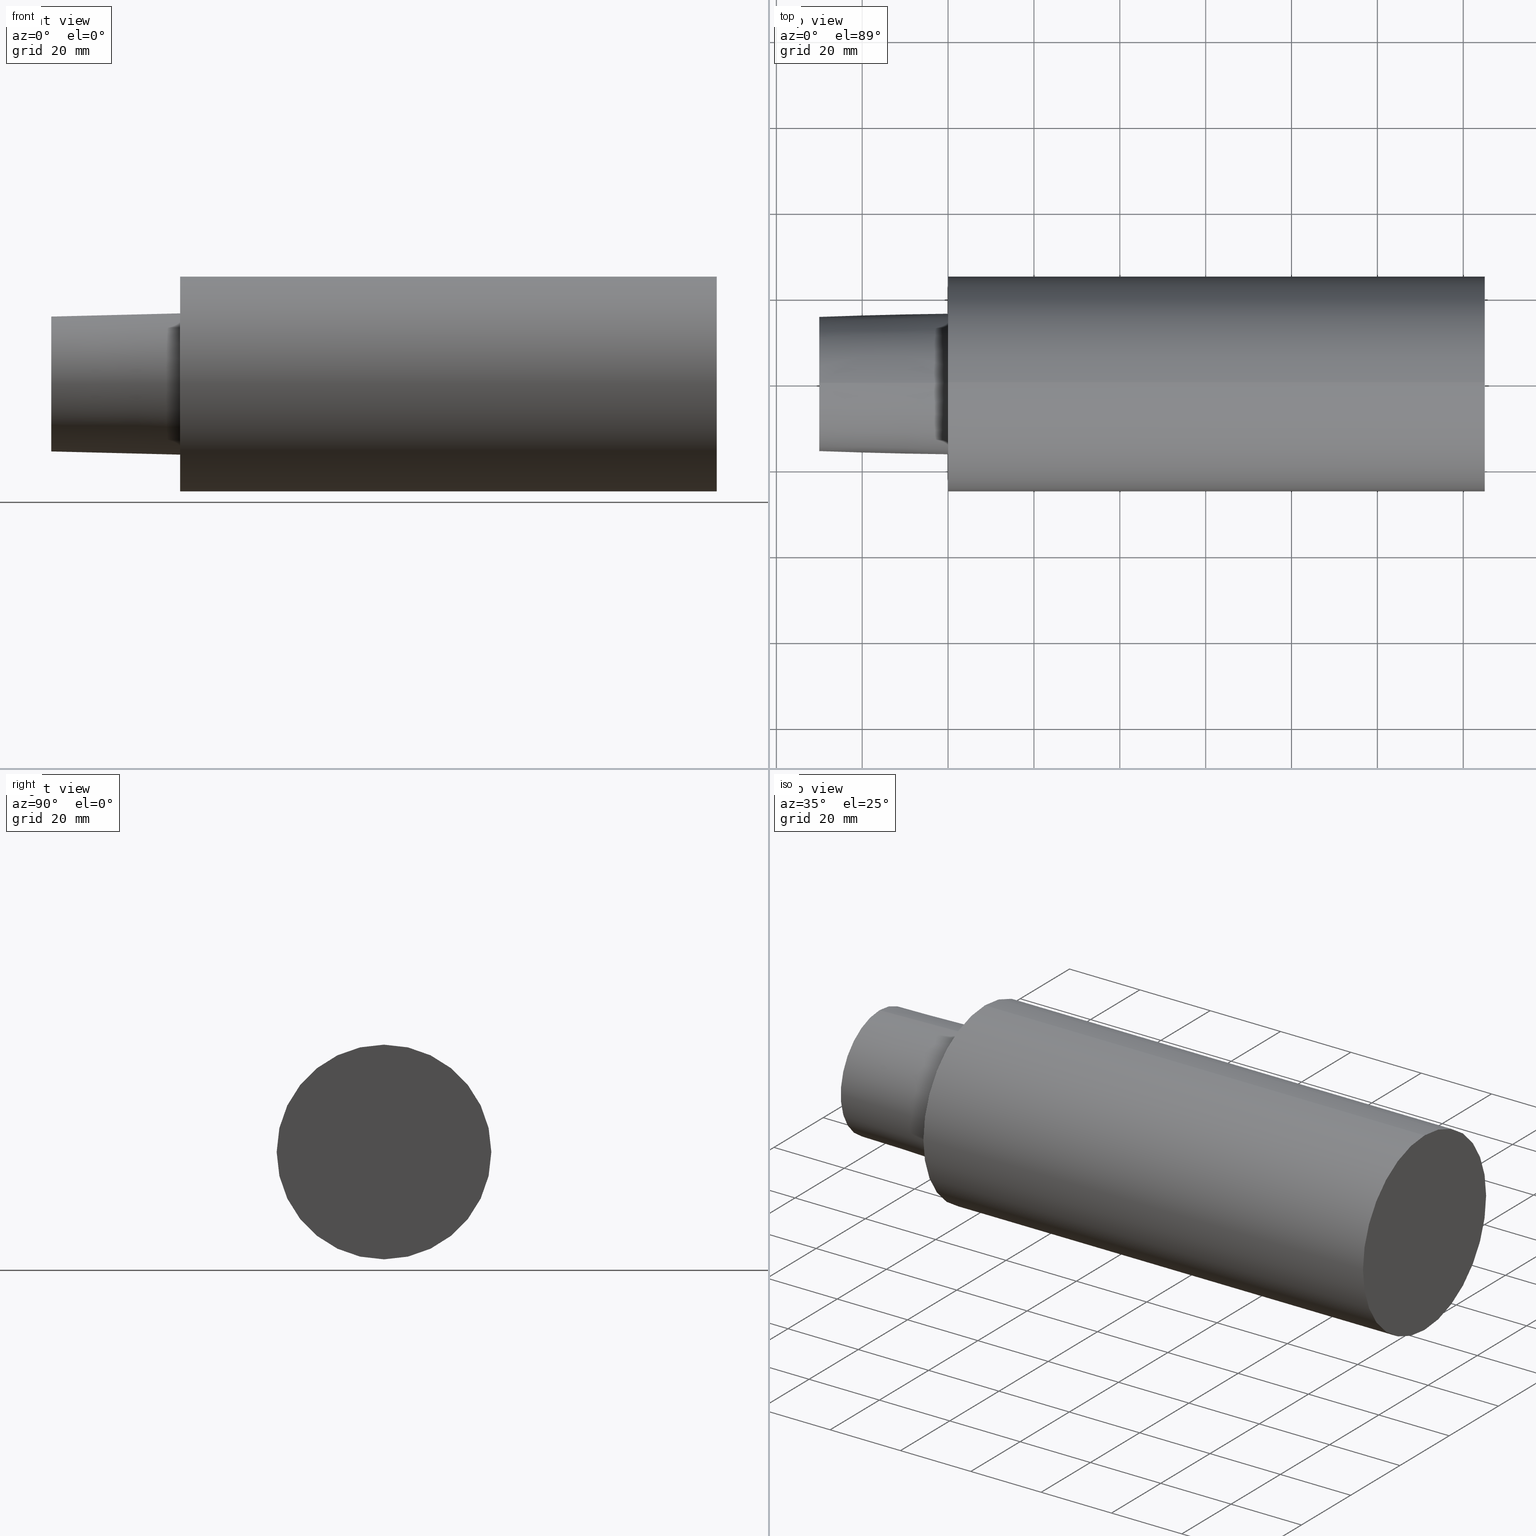
[diagram: canonical four-view strip — front | top / right | iso, engineering-drawing reading convention]
A machine part, canonical four-view strip (front | top / right | iso — engineering-drawing reading convention). The complete STEP part file that produces these views, byte-faithful:
ISO-10303-21;
HEADER;
FILE_DESCRIPTION (( 'STEP AP203' ),
    '1' );
FILE_NAME ('C5-F50-125.stp',
    '2022-03-11T15:28:16',
    ( '' ),
    ( '' ),
    'SwSTEP 2.0',
    'SolidWorks 2021',
    '' );
FILE_SCHEMA (( 'CONFIG_CONTROL_DESIGN' ));
ENDSEC;

DATA;
#1 = PERSON_AND_ORGANIZATION_ROLE ( 'design_owner' ) ;
#2 = EDGE_CURVE ( 'NONE', #92, #183, #154, .T. ) ;
#3 = APPROVAL_PERSON_ORGANIZATION ( #162, #6, #219 ) ;
#4 = PRODUCT_RELATED_PRODUCT_CATEGORY ( 'detail', '', ( #181 ) ) ;
#5 = DIRECTION ( 'NONE',  ( -1.000000000000000000, 0.000000000000000000, 0.000000000000000000 ) ) ;
#6 = APPROVAL ( #9, 'UNSPECIFIED' ) ;
#7 = CARTESIAN_POINT ( 'NONE',  ( -29.99999996940000102, 0.000000000000000000, -15.70494056296217700 ) ) ;
#8 = CARTESIAN_POINT ( 'NONE',  ( 124.9999998724999841, 3.061616994745535943E-15, -24.99999997449999967 ) ) ;
#9 = APPROVAL_STATUS ( 'not_yet_approved' ) ;
#10 = EDGE_LOOP ( 'NONE', ( #187, #144 ) ) ;
#11 = CARTESIAN_POINT ( 'NONE',  ( 0.000000000000000000, 3.061616994745535943E-15, -24.99999997449999967 ) ) ;
#12 = PERSON ( 'UNSPECIFIED', 'UNSPECIFIED', 'UNSPECIFIED', ('UNSPECIFIED'), ('UNSPECIFIED'), ('UNSPECIFIED') ) ;
#13 = DATE_AND_TIME ( #200, #176 ) ;
#14 =( NAMED_UNIT ( * ) PLANE_ANGLE_UNIT ( ) SI_UNIT ( $, .RADIAN. ) );
#15 = VERTEX_POINT ( 'NONE', #41 ) ;
#16 = DIRECTION ( 'NONE',  ( 0.000000000000000000, 0.000000000000000000, 1.000000000000000000 ) ) ;
#17 = DIRECTION ( 'NONE',  ( 0.000000000000000000, 0.000000000000000000, 1.000000000000000000 ) ) ;
#18 = CC_DESIGN_PERSON_AND_ORGANIZATION_ASSIGNMENT ( #240, #1, ( #181 ) ) ;
#19 = CARTESIAN_POINT ( 'NONE',  ( -29.99999996940000102, 3.061616994745535943E-15, -24.99999997449999967 ) ) ;
#20 = CC_DESIGN_APPROVAL ( #6, ( #73 ) ) ;
#21 = EDGE_CURVE ( 'NONE', #183, #233, #104, .T. ) ;
#22 = CARTESIAN_POINT ( 'NONE',  ( 0.000000000000000000, 0.000000000000000000, 0.000000000000000000 ) ) ;
#23 = APPROVAL_STATUS ( 'not_yet_approved' ) ;
#24 = ADVANCED_BREP_SHAPE_REPRESENTATION ( 'C5-F50-125', ( #228, #79 ), #44 ) ;
#25 = AXIS2_PLACEMENT_3D ( 'NONE', #22, #99, #62 ) ;
#26 = APPROVAL_ROLE ( '' ) ;
#27 = COORDINATED_UNIVERSAL_TIME_OFFSET ( 6, 0, .BEHIND. ) ;
#28 = APPROVAL_PERSON_ORGANIZATION ( #195, #93, #29 ) ;
#29 = APPROVAL_ROLE ( '' ) ;
#30 = PRODUCT_DEFINITION_SHAPE ( 'NONE', 'NONE',  #134 ) ;
#31 = PERSON_AND_ORGANIZATION_ROLE ( 'design_supplier' ) ;
#32 = ORIENTED_EDGE ( 'NONE', *, *, #40, .F. ) ;
#33 = FACE_OUTER_BOUND ( 'NONE', #39, .T. ) ;
#34 = UNCERTAINTY_MEASURE_WITH_UNIT (LENGTH_MEASURE( 1.000000000000000082E-05 ), #53, 'distance_accuracy_value', 'NONE');
#35 = DIRECTION ( 'NONE',  ( 1.000000000000000000, 0.000000000000000000, 0.000000000000000000 ) ) ;
#36 = CARTESIAN_POINT ( 'NONE',  ( 0.000000000000000000, 2.015157114129614578E-15, 16.45500658257258664 ) ) ;
#37 = ORIENTED_EDGE ( 'NONE', *, *, #2, .T. ) ;
#38 = CARTESIAN_POINT ( 'NONE',  ( 0.000000000000000000, 0.000000000000000000, 24.99999997449999967 ) ) ;
#39 = EDGE_LOOP ( 'NONE', ( #81, #153 ) ) ;
#40 = EDGE_CURVE ( 'NONE', #203, #15, #215, .T. ) ;
#41 = CARTESIAN_POINT ( 'NONE',  ( 0.000000000000000000, 0.000000000000000000, -16.45500658257258664 ) ) ;
#42 = PLANE ( 'NONE',  #61 ) ;
#43 = LOCAL_TIME ( 9, 28, 16.00000000000000000, #71 ) ;
#44 =( GEOMETRIC_REPRESENTATION_CONTEXT ( 3 ) GLOBAL_UNCERTAINTY_ASSIGNED_CONTEXT ( ( #34 ) ) GLOBAL_UNIT_ASSIGNED_CONTEXT ( ( #53, #14, #164 ) ) REPRESENTATION_CONTEXT ( 'NONE', 'WORKASPACE' ) );
#45 = DIRECTION ( 'NONE',  ( 0.000000000000000000, 0.000000000000000000, 1.000000000000000000 ) ) ;
#46 = CC_DESIGN_PERSON_AND_ORGANIZATION_ASSIGNMENT ( #90, #146, ( #134 ) ) ;
#47 = APPROVAL_DATE_TIME ( #48, #6 ) ;
#48 = DATE_AND_TIME ( #49, #43 ) ;
#49 = CALENDAR_DATE ( 2022, 11, 3 ) ;
#50 = DIRECTION ( 'NONE',  ( 0.000000000000000000, 0.000000000000000000, 1.000000000000000000 ) ) ;
#51 = CIRCLE ( 'NONE', #211, 24.99999997449999967 ) ;
#52 = COORDINATED_UNIVERSAL_TIME_OFFSET ( 6, 0, .BEHIND. ) ;
#53 =( LENGTH_UNIT ( ) NAMED_UNIT ( * ) SI_UNIT ( .MILLI., .METRE. ) );
#54 = CYLINDRICAL_SURFACE ( 'NONE', #241, 24.99999997449999967 ) ;
#55 = CC_DESIGN_DATE_AND_TIME_ASSIGNMENT ( #220, #244, ( #134 ) ) ;
#56 = CIRCLE ( 'NONE', #198, 15.70494056296217700 ) ;
#57 = ORIENTED_EDGE ( 'NONE', *, *, #239, .T. ) ;
#58 = CARTESIAN_POINT ( 'NONE',  ( 0.000000000000000000, 0.000000000000000000, 0.000000000000000000 ) ) ;
#59 = MECHANICAL_CONTEXT ( 'NONE', #201, 'mechanical' ) ;
#60 = DIRECTION ( 'NONE',  ( -1.000000000000000000, 0.000000000000000000, 0.000000000000000000 ) ) ;
#61 = AXIS2_PLACEMENT_3D ( 'NONE', #118, #136, #85 ) ;
#62 = DIRECTION ( 'NONE',  ( 0.000000000000000000, 0.000000000000000000, 1.000000000000000000 ) ) ;
#63 = ADVANCED_FACE ( 'NONE', ( #135, #216 ), #42, .F. ) ;
#64 = CC_DESIGN_APPROVAL ( #93, ( #134 ) ) ;
#65 = CC_DESIGN_PERSON_AND_ORGANIZATION_ASSIGNMENT ( #123, #139, ( #254 ) ) ;
#66 = AXIS2_PLACEMENT_3D ( 'NONE', #107, #189, #232 ) ;
#67 = COORDINATED_UNIVERSAL_TIME_OFFSET ( 6, 0, .BEHIND. ) ;
#68 = DATE_AND_TIME ( #205, #210 ) ;
#69 = EDGE_LOOP ( 'NONE', ( #147, #117, #76, #250 ) ) ;
#70 = DIRECTION ( 'NONE',  ( 0.000000000000000000, 1.000000000000000000, 0.000000000000000000 ) ) ;
#71 = COORDINATED_UNIVERSAL_TIME_OFFSET ( 6, 0, .BEHIND. ) ;
#72 = ADVANCED_FACE ( 'NONE', ( #157 ), #119, .F. ) ;
#73 = PRODUCT_DEFINITION_FORMATION_WITH_SPECIFIED_SOURCE ( 'ANY', '', #181, .NOT_KNOWN. ) ;
#74 = VERTEX_POINT ( 'NONE', #7 ) ;
#75 = CARTESIAN_POINT ( 'NONE',  ( 0.000000000000000000, 0.000000000000000000, 0.000000000000000000 ) ) ;
#76 = ORIENTED_EDGE ( 'NONE', *, *, #40, .T. ) ;
#77 = EDGE_LOOP ( 'NONE', ( #194, #32 ) ) ;
#78 = CARTESIAN_POINT ( 'NONE',  ( 124.9999998724999841, 0.000000000000000000, 24.99999997449999967 ) ) ;
#79 = AXIS2_PLACEMENT_3D ( 'NONE', #75, #224, #208 ) ;
#80 = LINE ( 'NONE', #96, #137 ) ;
#81 = ORIENTED_EDGE ( 'NONE', *, *, #239, .F. ) ;
#82 = EDGE_CURVE ( 'NONE', #15, #203, #98, .T. ) ;
#83 = VERTEX_POINT ( 'NONE', #242 ) ;
#84 = ADVANCED_FACE ( 'NONE', ( #178 ), #245, .T. ) ;
#85 = DIRECTION ( 'NONE',  ( 0.000000000000000000, 1.000000000000000000, 0.000000000000000000 ) ) ;
#86 = VECTOR ( 'NONE', #188, 1000.000000000000000 ) ;
#87 = APPROVAL_STATUS ( 'not_yet_approved' ) ;
#88 = AXIS2_PLACEMENT_3D ( 'NONE', #186, #35, #249 ) ;
#89 = CALENDAR_DATE ( 2022, 11, 3 ) ;
#90 = PERSON_AND_ORGANIZATION ( #12, #223 ) ;
#91 = CIRCLE ( 'NONE', #247, 24.99999997449999967 ) ;
#92 = VERTEX_POINT ( 'NONE', #8 ) ;
#93 = APPROVAL ( #23, 'UNSPECIFIED' ) ;
#94 = CARTESIAN_POINT ( 'NONE',  ( -29.99999996940000102, 0.000000000000000000, 24.99999997449999967 ) ) ;
#95 = ORIENTED_EDGE ( 'NONE', *, *, #166, .T. ) ;
#96 = CARTESIAN_POINT ( 'NONE',  ( 0.000000000000000000, 2.015157114129614578E-15, 16.45500658257258664 ) ) ;
#97 = APPROVAL_PERSON_ORGANIZATION ( #163, #227, #26 ) ;
#98 = CIRCLE ( 'NONE', #171, 16.45500658257258664 ) ;
#99 = DIRECTION ( 'NONE',  ( -1.000000000000000000, 0.000000000000000000, 0.000000000000000000 ) ) ;
#100 = CONICAL_SURFACE ( 'NONE', #88, 16.45500658257258664, 0.02499699292341668252 ) ;
#101 = AXIS2_PLACEMENT_3D ( 'NONE', #234, #60, #252 ) ;
#102 = DATE_TIME_ROLE ( 'classification_date' ) ;
#103 = CC_DESIGN_SECURITY_CLASSIFICATION ( #254, ( #73 ) ) ;
#104 = CIRCLE ( 'NONE', #101, 24.99999997449999967 ) ;
#105 = PERSON_AND_ORGANIZATION ( #12, #223 ) ;
#106 = EDGE_LOOP ( 'NONE', ( #207, #141, #173, #236 ) ) ;
#107 = CARTESIAN_POINT ( 'NONE',  ( 124.9999998724999841, 0.000000000000000000, 0.000000000000000000 ) ) ;
#108 = EDGE_CURVE ( 'NONE', #92, #213, #91, .T. ) ;
#109 = DIRECTION ( 'NONE',  ( -1.000000000000000000, 0.000000000000000000, 0.000000000000000000 ) ) ;
#110 = CC_DESIGN_DATE_AND_TIME_ASSIGNMENT ( #68, #102, ( #254 ) ) ;
#111 = CARTESIAN_POINT ( 'NONE',  ( -29.99999996940000102, 0.000000000000000000, 0.000000000000000000 ) ) ;
#112 = ORIENTED_EDGE ( 'NONE', *, *, #237, .F. ) ;
#113 = CARTESIAN_POINT ( 'NONE',  ( 0.000000000000000000, 0.000000000000000000, 0.000000000000000000 ) ) ;
#114 = ADVANCED_FACE ( 'NONE', ( #197 ), #54, .T. ) ;
#115 = EDGE_LOOP ( 'NONE', ( #57, #37, #174, #112 ) ) ;
#116 = LOCAL_TIME ( 9, 28, 16.00000000000000000, #27 ) ;
#117 = ORIENTED_EDGE ( 'NONE', *, *, #196, .T. ) ;
#118 = CARTESIAN_POINT ( 'NONE',  ( 0.000000000000000000, 24.99999997449999967, 0.000000000000000000 ) ) ;
#119 = PLANE ( 'NONE',  #126 ) ;
#120 = CARTESIAN_POINT ( 'NONE',  ( 0.000000000000000000, 0.000000000000000000, 0.000000000000000000 ) ) ;
#121 = COORDINATED_UNIVERSAL_TIME_OFFSET ( 6, 0, .BEHIND. ) ;
#122 = DIRECTION ( 'NONE',  ( 1.000000000000000000, 0.000000000000000000, 0.000000000000000000 ) ) ;
#123 = PERSON_AND_ORGANIZATION ( #12, #223 ) ;
#124 = DIRECTION ( 'NONE',  ( 0.000000000000000000, 0.000000000000000000, 1.000000000000000000 ) ) ;
#125 = CC_DESIGN_APPROVAL ( #227, ( #254 ) ) ;
#126 = AXIS2_PLACEMENT_3D ( 'NONE', #243, #122, #70 ) ;
#127 = PERSON_AND_ORGANIZATION_ROLE ( 'creator' ) ;
#128 = DIRECTION ( 'NONE',  ( -1.000000000000000000, 0.000000000000000000, 0.000000000000000000 ) ) ;
#129 = EDGE_LOOP ( 'NONE', ( #133, #149 ) ) ;
#130 = DIRECTION ( 'NONE',  ( 0.000000000000000000, 0.000000000000000000, -1.000000000000000000 ) ) ;
#131 = CARTESIAN_POINT ( 'NONE',  ( -29.99999996940000102, 0.000000000000000000, 0.000000000000000000 ) ) ;
#132 = AXIS2_PLACEMENT_3D ( 'NONE', #142, #5, #50 ) ;
#133 = ORIENTED_EDGE ( 'NONE', *, *, #140, .T. ) ;
#134 = PRODUCT_DEFINITION ( 'UNKNOWN', '', #73, #190 ) ;
#135 = FACE_BOUND ( 'NONE', #77, .T. ) ;
#136 = DIRECTION ( 'NONE',  ( 1.000000000000000000, 0.000000000000000000, 0.000000000000000000 ) ) ;
#137 = VECTOR ( 'NONE', #226, 999.9999999999998863 ) ;
#138 = EDGE_CURVE ( 'NONE', #83, #74, #165, .T. ) ;
#139 = PERSON_AND_ORGANIZATION_ROLE ( 'classification_officer' ) ;
#140 = EDGE_CURVE ( 'NONE', #74, #83, #56, .T. ) ;
#141 = ORIENTED_EDGE ( 'NONE', *, *, #108, .T. ) ;
#142 = CARTESIAN_POINT ( 'NONE',  ( -29.99999996940000102, 0.000000000000000000, 0.000000000000000000 ) ) ;
#143 = PERSON_AND_ORGANIZATION ( #12, #223 ) ;
#144 = ORIENTED_EDGE ( 'NONE', *, *, #21, .T. ) ;
#145 = AXIS2_PLACEMENT_3D ( 'NONE', #111, #128, #255 ) ;
#146 = PERSON_AND_ORGANIZATION_ROLE ( 'creator' ) ;
#147 = ORIENTED_EDGE ( 'NONE', *, *, #138, .F. ) ;
#148 = DIRECTION ( 'NONE',  ( 0.9996875914402667540, 0.000000000000000000, -0.02499438977767799372 ) ) ;
#149 = ORIENTED_EDGE ( 'NONE', *, *, #138, .T. ) ;
#150 = ORIENTED_EDGE ( 'NONE', *, *, #140, .F. ) ;
#151 = CARTESIAN_POINT ( 'NONE',  ( 124.9999998724999841, 0.000000000000000000, 0.000000000000000000 ) ) ;
#152 = CARTESIAN_POINT ( 'NONE',  ( 0.000000000000000000, 0.000000000000000000, -16.45500658257258664 ) ) ;
#153 = ORIENTED_EDGE ( 'NONE', *, *, #108, .F. ) ;
#154 = LINE ( 'NONE', #19, #231 ) ;
#155 = ORIENTED_EDGE ( 'NONE', *, *, #82, .T. ) ;
#156 = CIRCLE ( 'NONE', #217, 24.99999997449999967 ) ;
#157 = FACE_OUTER_BOUND ( 'NONE', #129, .T. ) ;
#158 = SHAPE_DEFINITION_REPRESENTATION ( #30, #24 ) ;
#159 = LOCAL_TIME ( 9, 28, 16.00000000000000000, #52 ) ;
#160 = CONICAL_SURFACE ( 'NONE', #193, 16.45500658257258664, 0.02499699292341668252 ) ;
#161 = DIRECTION ( 'NONE',  ( -1.000000000000000000, 0.000000000000000000, 0.000000000000000000 ) ) ;
#162 = PERSON_AND_ORGANIZATION ( #12, #223 ) ;
#163 = PERSON_AND_ORGANIZATION ( #12, #223 ) ;
#164 =( NAMED_UNIT ( * ) SI_UNIT ( $, .STERADIAN. ) SOLID_ANGLE_UNIT ( ) );
#165 = CIRCLE ( 'NONE', #145, 15.70494056296217700 ) ;
#166 = EDGE_CURVE ( 'NONE', #74, #15, #229, .T. ) ;
#167 = FACE_OUTER_BOUND ( 'NONE', #191, .T. ) ;
#168 = DIRECTION ( 'NONE',  ( 1.000000000000000000, 0.000000000000000000, 0.000000000000000000 ) ) ;
#169 = ADVANCED_FACE ( 'NONE', ( #167 ), #100, .T. ) ;
#170 = APPLICATION_PROTOCOL_DEFINITION ( 'international standard', 'config_control_design', 1994, #201 ) ;
#171 = AXIS2_PLACEMENT_3D ( 'NONE', #120, #161, #124 ) ;
#172 = EDGE_CURVE ( 'NONE', #233, #183, #156, .T. ) ;
#173 = ORIENTED_EDGE ( 'NONE', *, *, #237, .T. ) ;
#174 = ORIENTED_EDGE ( 'NONE', *, *, #172, .F. ) ;
#175 = APPLICATION_PROTOCOL_DEFINITION ( 'international standard', 'config_control_design', 1994, #230 ) ;
#176 = LOCAL_TIME ( 9, 28, 16.00000000000000000, #67 ) ;
#177 = ADVANCED_FACE ( 'NONE', ( #33 ), #212, .F. ) ;
#178 = FACE_OUTER_BOUND ( 'NONE', #106, .T. ) ;
#179 = APPROVAL_DATE_TIME ( #202, #227 ) ;
#180 = APPROVAL_DATE_TIME ( #13, #93 ) ;
#181 = PRODUCT ( 'C5-F50-125', 'C5-F50-125', '', ( #59 ) ) ;
#182 = CALENDAR_DATE ( 2022, 11, 3 ) ;
#183 = VERTEX_POINT ( 'NONE', #11 ) ;
#184 = DIRECTION ( 'NONE',  ( 0.000000000000000000, 0.000000000000000000, 1.000000000000000000 ) ) ;
#185 = ORIENTED_EDGE ( 'NONE', *, *, #196, .F. ) ;
#186 = CARTESIAN_POINT ( 'NONE',  ( 0.000000000000000000, 0.000000000000000000, 0.000000000000000000 ) ) ;
#187 = ORIENTED_EDGE ( 'NONE', *, *, #172, .T. ) ;
#188 = DIRECTION ( 'NONE',  ( -1.000000000000000000, 0.000000000000000000, 0.000000000000000000 ) ) ;
#189 = DIRECTION ( 'NONE',  ( -1.000000000000000000, 0.000000000000000000, 0.000000000000000000 ) ) ;
#190 = DESIGN_CONTEXT ( 'detailed design', #230, 'design' ) ;
#191 = EDGE_LOOP ( 'NONE', ( #185, #150, #95, #155 ) ) ;
#192 = CARTESIAN_POINT ( 'NONE',  ( -29.99999996940000102, 0.000000000000000000, 0.000000000000000000 ) ) ;
#193 = AXIS2_PLACEMENT_3D ( 'NONE', #58, #168, #130 ) ;
#194 = ORIENTED_EDGE ( 'NONE', *, *, #82, .F. ) ;
#195 = PERSON_AND_ORGANIZATION ( #12, #223 ) ;
#196 = EDGE_CURVE ( 'NONE', #83, #203, #80, .T. ) ;
#197 = FACE_OUTER_BOUND ( 'NONE', #115, .T. ) ;
#198 = AXIS2_PLACEMENT_3D ( 'NONE', #192, #209, #17 ) ;
#199 = CC_DESIGN_PERSON_AND_ORGANIZATION_ASSIGNMENT ( #143, #31, ( #73 ) ) ;
#200 = CALENDAR_DATE ( 2022, 11, 3 ) ;
#201 = APPLICATION_CONTEXT ( 'configuration controlled 3d designs of mechanical parts and assemblies' ) ;
#202 = DATE_AND_TIME ( #182, #159 ) ;
#203 = VERTEX_POINT ( 'NONE', #36 ) ;
#204 = CLOSED_SHELL ( 'NONE', ( #72, #169, #63, #84, #177, #114, #225 ) ) ;
#205 = CALENDAR_DATE ( 2022, 11, 3 ) ;
#206 = DIRECTION ( 'NONE',  ( -1.000000000000000000, 0.000000000000000000, 0.000000000000000000 ) ) ;
#207 = ORIENTED_EDGE ( 'NONE', *, *, #2, .F. ) ;
#208 = DIRECTION ( 'NONE',  ( 1.000000000000000000, 0.000000000000000000, 0.000000000000000000 ) ) ;
#209 = DIRECTION ( 'NONE',  ( -1.000000000000000000, 0.000000000000000000, 0.000000000000000000 ) ) ;
#210 = LOCAL_TIME ( 9, 28, 16.00000000000000000, #121 ) ;
#211 = AXIS2_PLACEMENT_3D ( 'NONE', #151, #206, #16 ) ;
#212 = PLANE ( 'NONE',  #66 ) ;
#213 = VERTEX_POINT ( 'NONE', #78 ) ;
#214 = FACE_OUTER_BOUND ( 'NONE', #69, .T. ) ;
#215 = CIRCLE ( 'NONE', #25, 16.45500658257258664 ) ;
#216 = FACE_OUTER_BOUND ( 'NONE', #10, .T. ) ;
#217 = AXIS2_PLACEMENT_3D ( 'NONE', #113, #222, #184 ) ;
#218 = DIRECTION ( 'NONE',  ( -1.000000000000000000, 0.000000000000000000, 0.000000000000000000 ) ) ;
#219 = APPROVAL_ROLE ( '' ) ;
#220 = DATE_AND_TIME ( #89, #116 ) ;
#221 = SECURITY_CLASSIFICATION_LEVEL ( 'unclassified' ) ;
#222 = DIRECTION ( 'NONE',  ( -1.000000000000000000, 0.000000000000000000, 0.000000000000000000 ) ) ;
#223 = ORGANIZATION ( 'UNSPECIFIED', 'UNSPECIFIED', '' ) ;
#224 = DIRECTION ( 'NONE',  ( 0.000000000000000000, 0.000000000000000000, 1.000000000000000000 ) ) ;
#225 = ADVANCED_FACE ( 'NONE', ( #214 ), #160, .T. ) ;
#226 = DIRECTION ( 'NONE',  ( 0.9996875914402667540, 3.060929943787468651E-18, 0.02499438977767799372 ) ) ;
#227 = APPROVAL ( #87, 'UNSPECIFIED' ) ;
#228 = MANIFOLD_SOLID_BREP ( 'Scale1', #204 ) ;
#229 = LINE ( 'NONE', #152, #235 ) ;
#230 = APPLICATION_CONTEXT ( 'configuration controlled 3d designs of mechanical parts and assemblies' ) ;
#231 = VECTOR ( 'NONE', #238, 1000.000000000000000 ) ;
#232 = DIRECTION ( 'NONE',  ( 0.000000000000000000, 0.000000000000000000, 1.000000000000000000 ) ) ;
#233 = VERTEX_POINT ( 'NONE', #38 ) ;
#234 = CARTESIAN_POINT ( 'NONE',  ( 0.000000000000000000, 0.000000000000000000, 0.000000000000000000 ) ) ;
#235 = VECTOR ( 'NONE', #148, 999.9999999999998863 ) ;
#236 = ORIENTED_EDGE ( 'NONE', *, *, #21, .F. ) ;
#237 = EDGE_CURVE ( 'NONE', #213, #233, #251, .T. ) ;
#238 = DIRECTION ( 'NONE',  ( -1.000000000000000000, 0.000000000000000000, 0.000000000000000000 ) ) ;
#239 = EDGE_CURVE ( 'NONE', #213, #92, #51, .T. ) ;
#240 = PERSON_AND_ORGANIZATION ( #12, #223 ) ;
#241 = AXIS2_PLACEMENT_3D ( 'NONE', #131, #109, #253 ) ;
#242 = CARTESIAN_POINT ( 'NONE',  ( -29.99999996940000102, 1.969228816626358703E-15, 15.70494056296217700 ) ) ;
#243 = CARTESIAN_POINT ( 'NONE',  ( -29.99999996940000102, 15.70494056296217700, 0.000000000000000000 ) ) ;
#244 = DATE_TIME_ROLE ( 'creation_date' ) ;
#245 = CYLINDRICAL_SURFACE ( 'NONE', #132, 24.99999997449999967 ) ;
#246 = CARTESIAN_POINT ( 'NONE',  ( 124.9999998724999841, 0.000000000000000000, 0.000000000000000000 ) ) ;
#247 = AXIS2_PLACEMENT_3D ( 'NONE', #246, #218, #45 ) ;
#248 = CC_DESIGN_PERSON_AND_ORGANIZATION_ASSIGNMENT ( #105, #127, ( #73 ) ) ;
#249 = DIRECTION ( 'NONE',  ( 0.000000000000000000, 0.000000000000000000, -1.000000000000000000 ) ) ;
#250 = ORIENTED_EDGE ( 'NONE', *, *, #166, .F. ) ;
#251 = LINE ( 'NONE', #94, #86 ) ;
#252 = DIRECTION ( 'NONE',  ( 0.000000000000000000, 0.000000000000000000, 1.000000000000000000 ) ) ;
#253 = DIRECTION ( 'NONE',  ( 0.000000000000000000, 0.000000000000000000, 1.000000000000000000 ) ) ;
#254 = SECURITY_CLASSIFICATION ( '', '', #221 ) ;
#255 = DIRECTION ( 'NONE',  ( 0.000000000000000000, 0.000000000000000000, 1.000000000000000000 ) ) ;
ENDSEC;
END-ISO-10303-21;
